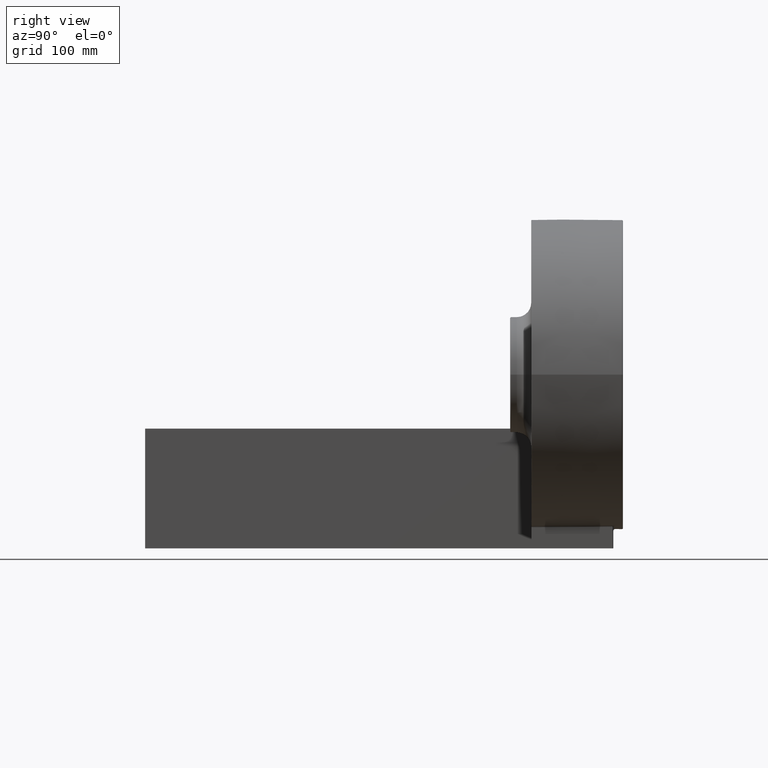
[diagram: clean part render]
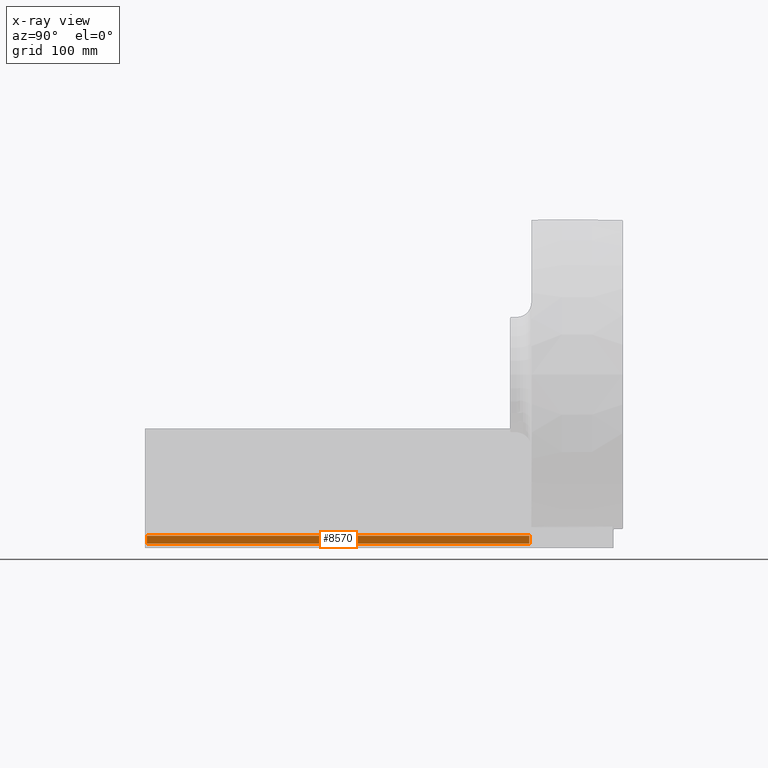
[diagram: x-ray — body ghosted, one internal face saturated and labeled with its STEP entity id]
A machine part, right view, then the same camera in x-ray: the body is ghosted and one INTERNAL B-rep face — a face not visible from any outside direction — is saturated and labeled: STEP entity #8570.
In plain terms, the highlighted planar face has unit normal (-1, 0, 0).
Its self-contained STEP definition (entity closure, byte-faithful):
#416 = VERTEX_POINT ( 'NONE', #8050 ) ;
#616 = DIRECTION ( 'NONE',  ( 2.168404344971007142E-16, -9.093308543426788360E-17, 1.000000000000000000 ) ) ;
#630 = CARTESIAN_POINT ( 'NONE',  ( 2.000000000000026201, 398.0000000000000568, -6.155470398627338184E-16 ) ) ;
#684 = LINE ( 'NONE', #630, #6381 ) ;
#858 = VECTOR ( 'NONE', #2569, 1000.000000000000000 ) ;
#913 = VERTEX_POINT ( 'NONE', #3174 ) ;
#1134 = EDGE_CURVE ( 'NONE', #913, #8655, #684, .T. ) ;
#2569 = DIRECTION ( 'NONE',  ( 0.0000000000000000000, 1.000000000000000000, 0.0000000000000000000 ) ) ;
#2622 = CARTESIAN_POINT ( 'NONE',  ( 2.000000000000000000, 2.000000000000000000, -118.9999999999999716 ) ) ;
#2680 = LINE ( 'NONE', #2622, #858 ) ;
#2867 = EDGE_CURVE ( 'NONE', #6394, #913, #2680, .T. ) ;
#2937 = CARTESIAN_POINT ( 'NONE',  ( 2.000000000000001776, 398.0000000000000568, -110.9999999999999574 ) ) ;
#3045 = CARTESIAN_POINT ( 'NONE',  ( 2.000000000000000000, 2.000000000000000000, -118.9999999999999716 ) ) ;
#3174 = CARTESIAN_POINT ( 'NONE',  ( 2.000000000000000444, 398.0000000000000568, -118.9999999999999716 ) ) ;
#3253 = DIRECTION ( 'NONE',  ( 2.168404344971006896E-16, 0.0000000000000000000, 1.000000000000000000 ) ) ;
#3263 = DIRECTION ( 'NONE',  ( -1.000000000000000000, 0.0000000000000000000, 2.168404344971006896E-16 ) ) ;
#3277 = CARTESIAN_POINT ( 'NONE',  ( 2.000000000000026201, 0.0000000000000000000, -9.792793815998145726E-16 ) ) ;
#3293 = PLANE ( 'NONE',  #5749 ) ;
#3366 = FACE_OUTER_BOUND ( 'NONE', #10324, .T. ) ;
#4324 = EDGE_CURVE ( 'NONE', #416, #6394, #8217, .T. ) ;
#5749 = AXIS2_PLACEMENT_3D ( 'NONE', #3277, #3263, #3253 ) ;
#6381 = VECTOR ( 'NONE', #616, 1000.000000000000000 ) ;
#6394 = VERTEX_POINT ( 'NONE', #3045 ) ;
#7386 = EDGE_CURVE ( 'NONE', #8655, #416, #10456, .T. ) ;
#8050 = CARTESIAN_POINT ( 'NONE',  ( 2.000000000000001776, 2.000000000000000000, -110.9999999999999574 ) ) ;
#8197 = DIRECTION ( 'NONE',  ( -2.168404344971006896E-16, 0.0000000000000000000, -1.000000000000000000 ) ) ;
#8213 = CARTESIAN_POINT ( 'NONE',  ( 2.000000000000001776, 2.000000000000000000, -110.9999999999999574 ) ) ;
#8217 = LINE ( 'NONE', #8213, #9051 ) ;
#8570 = ADVANCED_FACE ( 'NONE', ( #3366 ), #3293, .F. ) ;
#8655 = VERTEX_POINT ( 'NONE', #2937 ) ;
#9051 = VECTOR ( 'NONE', #8197, 1000.000000000000000 ) ;
#9291 = VECTOR ( 'NONE', #9715, 1000.000000000000000 ) ;
#9320 = ORIENTED_EDGE ( 'NONE', *, *, #2867, .T. ) ;
#9550 = ORIENTED_EDGE ( 'NONE', *, *, #4324, .T. ) ;
#9715 = DIRECTION ( 'NONE',  ( -0.0000000000000000000, -1.000000000000000000, -0.0000000000000000000 ) ) ;
#10127 = ORIENTED_EDGE ( 'NONE', *, *, #7386, .T. ) ;
#10282 = ORIENTED_EDGE ( 'NONE', *, *, #1134, .T. ) ;
#10324 = EDGE_LOOP ( 'NONE', ( #10282, #10127, #9550, #9320 ) ) ;
#10348 = CARTESIAN_POINT ( 'NONE',  ( 2.000000000000001776, 2.000000000000000000, -110.9999999999999574 ) ) ;
#10456 = LINE ( 'NONE', #10348, #9291 ) ;